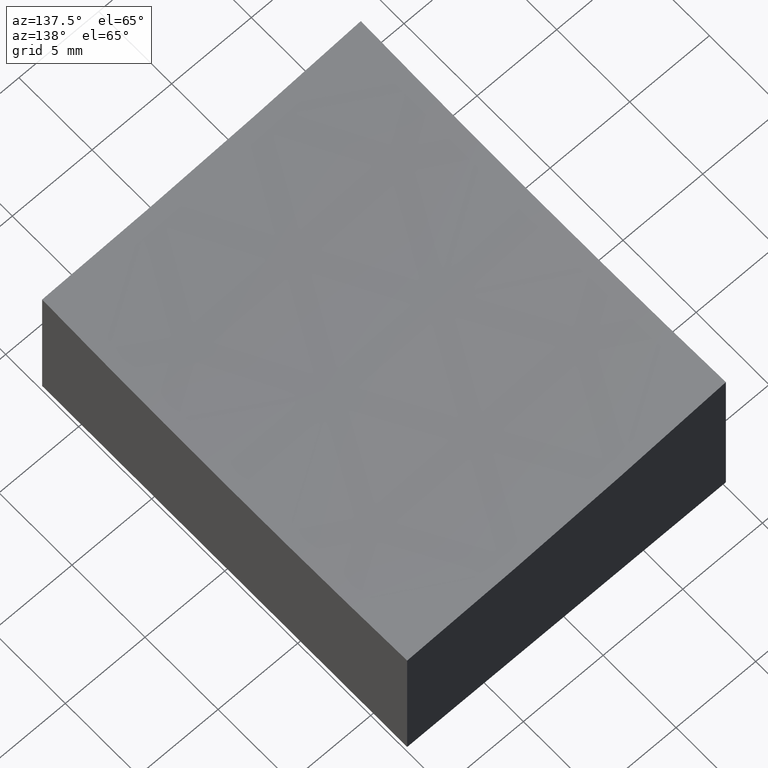
[diagram: clean part render]
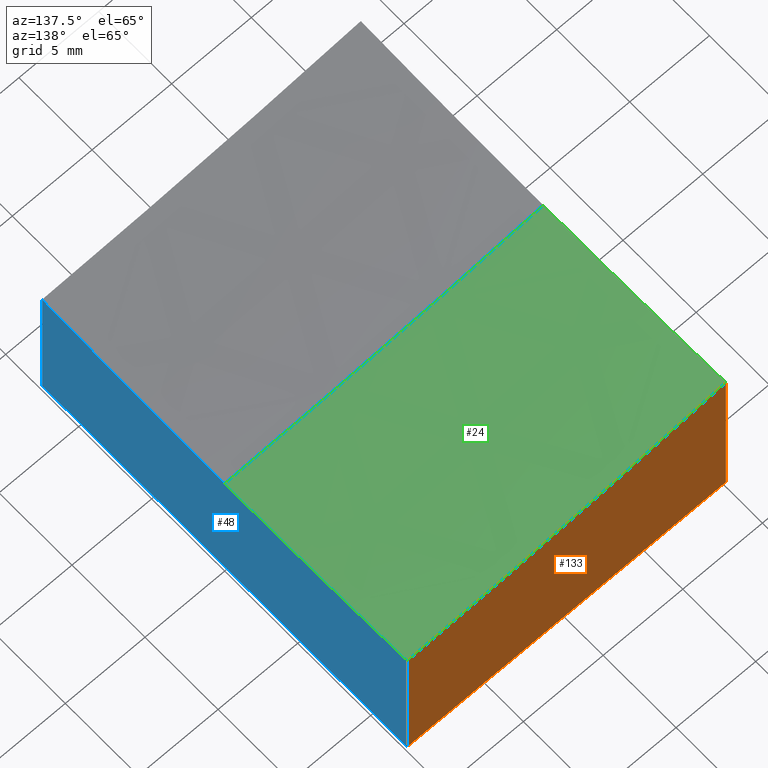
[diagram: same view with three faces highlighted in distinct colors, each labeled with its STEP entity id]
A machine part, auxiliary view with three faces highlighted in distinct colors.
Their STEP definitions:

[orange] entity #133 — the highlighted planar face has unit normal (0, -1, 0).
#7 = DIRECTION ( 'NONE',  ( 1.000000000000000000, 1.734723475976807094E-16, 0.000000000000000000 ) ) ;
#8 = CARTESIAN_POINT ( 'NONE',  ( -9.999999999999998224, 12.49999999999999645, -10.00000000000000000 ) ) ;
#16 = LINE ( 'NONE', #60, #194 ) ;
#27 = ORIENTED_EDGE ( 'NONE', *, *, #177, .T. ) ;
#41 = DIRECTION ( 'NONE',  ( -0.000000000000000000, -0.000000000000000000, -1.000000000000000000 ) ) ;
#42 = DIRECTION ( 'NONE',  ( -1.000000000000000000, -1.734723475976807094E-16, 0.000000000000000000 ) ) ;
#46 = VERTEX_POINT ( 'NONE', #8 ) ;
#52 = ORIENTED_EDGE ( 'NONE', *, *, #157, .T. ) ;
#60 = CARTESIAN_POINT ( 'NONE',  ( 10.00000000000000178, 12.50000000000000000, -10.00000000000000000 ) ) ;
#61 = DIRECTION ( 'NONE',  ( 1.000000000000000000, 1.738121566355747637E-16, 0.000000000000000000 ) ) ;
#65 = ORIENTED_EDGE ( 'NONE', *, *, #253, .F. ) ;
#70 = AXIS2_PLACEMENT_3D ( 'NONE', #79, #254, #61 ) ;
#79 = CARTESIAN_POINT ( 'NONE',  ( 15.00000000000002487, 12.50000000000000178, 199.0000000000000000 ) ) ;
#82 = LINE ( 'NONE', #189, #147 ) ;
#87 = VERTEX_POINT ( 'NONE', #98 ) ;
#90 = VERTEX_POINT ( 'NONE', #224 ) ;
#97 = VERTEX_POINT ( 'NONE', #203 ) ;
#98 = CARTESIAN_POINT ( 'NONE',  ( 10.00000000000000178, 12.50000000000000000, -10.00000000000000000 ) ) ;
#112 = CARTESIAN_POINT ( 'NONE',  ( 10.00000000000000178, 12.50000000000000000, 10.00000000000000000 ) ) ;
#132 = EDGE_LOOP ( 'NONE', ( #65, #27, #264, #52 ) ) ;
#133 = ADVANCED_FACE ( 'NONE', ( #243 ), #141, .F. ) ;
#141 = PLANE ( 'NONE',  #205 ) ;
#143 = CARTESIAN_POINT ( 'NONE',  ( -9.999999999999998224, 12.49999999999999645, 10.00000000000000000 ) ) ;
#147 = VECTOR ( 'NONE', #230, 1000.000000000000000 ) ;
#157 = EDGE_CURVE ( 'NONE', #87, #46, #16, .T. ) ;
#167 = CIRCLE ( 'NONE', #70, 199.6089927833914146 ) ;
#177 = EDGE_CURVE ( 'NONE', #90, #97, #167, .T. ) ;
#189 = CARTESIAN_POINT ( 'NONE',  ( 10.00000000000000178, 12.50000000000000000, 10.00000000000000000 ) ) ;
#194 = VECTOR ( 'NONE', #42, 1000.000000000000000 ) ;
#203 = CARTESIAN_POINT ( 'NONE',  ( 10.00000000000000178, 12.50000000000000000, -0.5463605280738026426 ) ) ;
#205 = AXIS2_PLACEMENT_3D ( 'NONE', #112, #221, #7 ) ;
#208 = EDGE_CURVE ( 'NONE', #97, #87, #82, .T. ) ;
#210 = VECTOR ( 'NONE', #41, 1000.000000000000000 ) ;
#221 = DIRECTION ( 'NONE',  ( 1.734723475976807094E-16, -1.000000000000000000, 0.000000000000000000 ) ) ;
#224 = CARTESIAN_POINT ( 'NONE',  ( -9.999999999999996447, 12.49999999999999645, 0.9627560280642266655 ) ) ;
#230 = DIRECTION ( 'NONE',  ( -0.000000000000000000, -0.000000000000000000, -1.000000000000000000 ) ) ;
#243 = FACE_OUTER_BOUND ( 'NONE', #132, .T. ) ;
#253 = EDGE_CURVE ( 'NONE', #90, #46, #270, .T. ) ;
#254 = DIRECTION ( 'NONE',  ( 1.734723475976807094E-16, -1.000000000000000000, 0.000000000000000000 ) ) ;
#264 = ORIENTED_EDGE ( 'NONE', *, *, #208, .T. ) ;
#270 = LINE ( 'NONE', #143, #210 ) ;

[blue] entity #48 — the highlighted planar face has unit normal (-1, 0, 0).
#5 = VECTOR ( 'NONE', #169, 1000.000000000000000 ) ;
#11 = CARTESIAN_POINT ( 'NONE',  ( 10.00000000000000178, -12.50000000000000000, -0.5463605280738026426 ) ) ;
#33 = DIRECTION ( 'NONE',  ( 0.000000000000000000, 0.000000000000000000, 1.000000000000000000 ) ) ;
#36 = FACE_OUTER_BOUND ( 'NONE', #214, .T. ) ;
#37 = CARTESIAN_POINT ( 'NONE',  ( 10.00000000000000178, -12.50000000000000000, -10.00000000000000000 ) ) ;
#39 = CIRCLE ( 'NONE', #249, 199.9374902313220730 ) ;
#40 = DIRECTION ( 'NONE',  ( 0.000000000000000000, 1.000000000000000000, 0.000000000000000000 ) ) ;
#48 = ADVANCED_FACE ( 'NONE', ( #36 ), #93, .F. ) ;
#57 = DIRECTION ( 'NONE',  ( 0.000000000000000000, 0.000000000000000000, 1.000000000000000000 ) ) ;
#63 = AXIS2_PLACEMENT_3D ( 'NONE', #182, #263, #148 ) ;
#68 = VERTEX_POINT ( 'NONE', #76 ) ;
#76 = CARTESIAN_POINT ( 'NONE',  ( 10.00000000000000178, -6.123233995736765296E-16, -0.9374902313220578876 ) ) ;
#82 = LINE ( 'NONE', #189, #147 ) ;
#87 = VERTEX_POINT ( 'NONE', #98 ) ;
#88 = VERTEX_POINT ( 'NONE', #11 ) ;
#93 = PLANE ( 'NONE',  #108 ) ;
#95 = ORIENTED_EDGE ( 'NONE', *, *, #208, .F. ) ;
#97 = VERTEX_POINT ( 'NONE', #203 ) ;
#98 = CARTESIAN_POINT ( 'NONE',  ( 10.00000000000000178, 12.50000000000000000, -10.00000000000000000 ) ) ;
#108 = AXIS2_PLACEMENT_3D ( 'NONE', #265, #118, #33 ) ;
#116 = EDGE_CURVE ( 'NONE', #68, #88, #39, .T. ) ;
#118 = DIRECTION ( 'NONE',  ( -1.000000000000000000, 0.000000000000000000, 0.000000000000000000 ) ) ;
#146 = EDGE_CURVE ( 'NONE', #97, #68, #232, .T. ) ;
#147 = VECTOR ( 'NONE', #230, 1000.000000000000000 ) ;
#148 = DIRECTION ( 'NONE',  ( 0.000000000000000000, 0.000000000000000000, 1.000000000000000000 ) ) ;
#156 = ORIENTED_EDGE ( 'NONE', *, *, #116, .T. ) ;
#163 = CARTESIAN_POINT ( 'NONE',  ( 10.00000000000000178, 0.000000000000000000, 199.0000000000000000 ) ) ;
#168 = LINE ( 'NONE', #192, #5 ) ;
#169 = DIRECTION ( 'NONE',  ( -0.000000000000000000, -0.000000000000000000, -1.000000000000000000 ) ) ;
#178 = ORIENTED_EDGE ( 'NONE', *, *, #191, .T. ) ;
#180 = VECTOR ( 'NONE', #40, 1000.000000000000000 ) ;
#182 = CARTESIAN_POINT ( 'NONE',  ( 10.00000000000000178, 0.000000000000000000, 199.0000000000000000 ) ) ;
#189 = CARTESIAN_POINT ( 'NONE',  ( 10.00000000000000178, 12.50000000000000000, 10.00000000000000000 ) ) ;
#191 = EDGE_CURVE ( 'NONE', #88, #245, #168, .T. ) ;
#192 = CARTESIAN_POINT ( 'NONE',  ( 10.00000000000000178, -12.50000000000000000, 10.00000000000000000 ) ) ;
#203 = CARTESIAN_POINT ( 'NONE',  ( 10.00000000000000178, 12.50000000000000000, -0.5463605280738026426 ) ) ;
#204 = EDGE_CURVE ( 'NONE', #245, #87, #233, .T. ) ;
#208 = EDGE_CURVE ( 'NONE', #97, #87, #82, .T. ) ;
#212 = CARTESIAN_POINT ( 'NONE',  ( 10.00000000000000178, -12.50000000000000000, -10.00000000000000000 ) ) ;
#214 = EDGE_LOOP ( 'NONE', ( #95, #260, #156, #178, #276 ) ) ;
#230 = DIRECTION ( 'NONE',  ( -0.000000000000000000, -0.000000000000000000, -1.000000000000000000 ) ) ;
#232 = CIRCLE ( 'NONE', #63, 199.9374902313220730 ) ;
#233 = LINE ( 'NONE', #37, #180 ) ;
#245 = VERTEX_POINT ( 'NONE', #212 ) ;
#248 = DIRECTION ( 'NONE',  ( -1.000000000000000000, 0.000000000000000000, 0.000000000000000000 ) ) ;
#249 = AXIS2_PLACEMENT_3D ( 'NONE', #163, #248, #57 ) ;
#260 = ORIENTED_EDGE ( 'NONE', *, *, #146, .T. ) ;
#263 = DIRECTION ( 'NONE',  ( -1.000000000000000000, 0.000000000000000000, 0.000000000000000000 ) ) ;
#265 = CARTESIAN_POINT ( 'NONE',  ( 10.00000000000000178, -12.50000000000000000, 10.00000000000000000 ) ) ;
#276 = ORIENTED_EDGE ( 'NONE', *, *, #204, .T. ) ;

[green] entity #24 — the highlighted spherical surface has radius 200 mm.
#13 = CIRCLE ( 'NONE', #241, 198.4313483298443259 ) ;
#20 = ORIENTED_EDGE ( 'NONE', *, *, #83, .T. ) ;
#23 = CIRCLE ( 'NONE', #217, 200.0000000000000000 ) ;
#24 = ADVANCED_FACE ( 'NONE', ( #161 ), #267, .F. ) ;
#61 = DIRECTION ( 'NONE',  ( 1.000000000000000000, 1.738121566355747637E-16, 0.000000000000000000 ) ) ;
#63 = AXIS2_PLACEMENT_3D ( 'NONE', #182, #263, #148 ) ;
#68 = VERTEX_POINT ( 'NONE', #76 ) ;
#70 = AXIS2_PLACEMENT_3D ( 'NONE', #79, #254, #61 ) ;
#75 = EDGE_CURVE ( 'NONE', #240, #90, #13, .T. ) ;
#76 = CARTESIAN_POINT ( 'NONE',  ( 10.00000000000000178, -6.123233995736765296E-16, -0.9374902313220578876 ) ) ;
#79 = CARTESIAN_POINT ( 'NONE',  ( 15.00000000000002487, 12.50000000000000178, 199.0000000000000000 ) ) ;
#83 = EDGE_CURVE ( 'NONE', #240, #68, #23, .T. ) ;
#90 = VERTEX_POINT ( 'NONE', #224 ) ;
#97 = VERTEX_POINT ( 'NONE', #203 ) ;
#113 = DIRECTION ( 'NONE',  ( 1.000000000000000000, 0.000000000000000000, -1.387778780781445676E-16 ) ) ;
#114 = DIRECTION ( 'NONE',  ( 0.000000000000000000, 0.000000000000000000, -1.000000000000000000 ) ) ;
#135 = EDGE_LOOP ( 'NONE', ( #181, #20, #138, #199 ) ) ;
#138 = ORIENTED_EDGE ( 'NONE', *, *, #146, .F. ) ;
#139 = DIRECTION ( 'NONE',  ( 1.000000000000000000, 0.000000000000000000, 0.000000000000000000 ) ) ;
#140 = CARTESIAN_POINT ( 'NONE',  ( -9.999999999999998224, 0.000000000000000000, 199.0000000000000000 ) ) ;
#146 = EDGE_CURVE ( 'NONE', #97, #68, #232, .T. ) ;
#148 = DIRECTION ( 'NONE',  ( 0.000000000000000000, 0.000000000000000000, 1.000000000000000000 ) ) ;
#161 = FACE_OUTER_BOUND ( 'NONE', #135, .T. ) ;
#167 = CIRCLE ( 'NONE', #70, 199.6089927833914146 ) ;
#177 = EDGE_CURVE ( 'NONE', #90, #97, #167, .T. ) ;
#181 = ORIENTED_EDGE ( 'NONE', *, *, #75, .F. ) ;
#182 = CARTESIAN_POINT ( 'NONE',  ( 10.00000000000000178, 0.000000000000000000, 199.0000000000000000 ) ) ;
#186 = DIRECTION ( 'NONE',  ( 1.224646799147353207E-16, -1.000000000000000000, -1.487096486582537186E-32 ) ) ;
#199 = ORIENTED_EDGE ( 'NONE', *, *, #177, .F. ) ;
#202 = CARTESIAN_POINT ( 'NONE',  ( 15.00000000000002665, 0.000000000000000000, 199.0000000000000000 ) ) ;
#203 = CARTESIAN_POINT ( 'NONE',  ( 10.00000000000000178, 12.50000000000000000, -0.5463605280738026426 ) ) ;
#211 = CARTESIAN_POINT ( 'NONE',  ( -9.999999999999996447, -3.061616997868382648E-15, 0.5686516701556842968 ) ) ;
#213 = AXIS2_PLACEMENT_3D ( 'NONE', #228, #247, #113 ) ;
#217 = AXIS2_PLACEMENT_3D ( 'NONE', #202, #186, #244 ) ;
#224 = CARTESIAN_POINT ( 'NONE',  ( -9.999999999999996447, 12.49999999999999645, 0.9627560280642266655 ) ) ;
#228 = CARTESIAN_POINT ( 'NONE',  ( 15.00000000000002665, 0.000000000000000000, 199.0000000000000000 ) ) ;
#232 = CIRCLE ( 'NONE', #63, 199.9374902313220730 ) ;
#240 = VERTEX_POINT ( 'NONE', #211 ) ;
#241 = AXIS2_PLACEMENT_3D ( 'NONE', #140, #139, #114 ) ;
#244 = DIRECTION ( 'NONE',  ( 1.000000000000000000, 1.224646799147353207E-16, 0.000000000000000000 ) ) ;
#247 = DIRECTION ( 'NONE',  ( 0.000000000000000000, -1.000000000000000000, -0.000000000000000000 ) ) ;
#254 = DIRECTION ( 'NONE',  ( 1.734723475976807094E-16, -1.000000000000000000, 0.000000000000000000 ) ) ;
#263 = DIRECTION ( 'NONE',  ( -1.000000000000000000, 0.000000000000000000, 0.000000000000000000 ) ) ;
#267 = SPHERICAL_SURFACE ( 'NONE', #213, 200.0000000000000000 ) ;